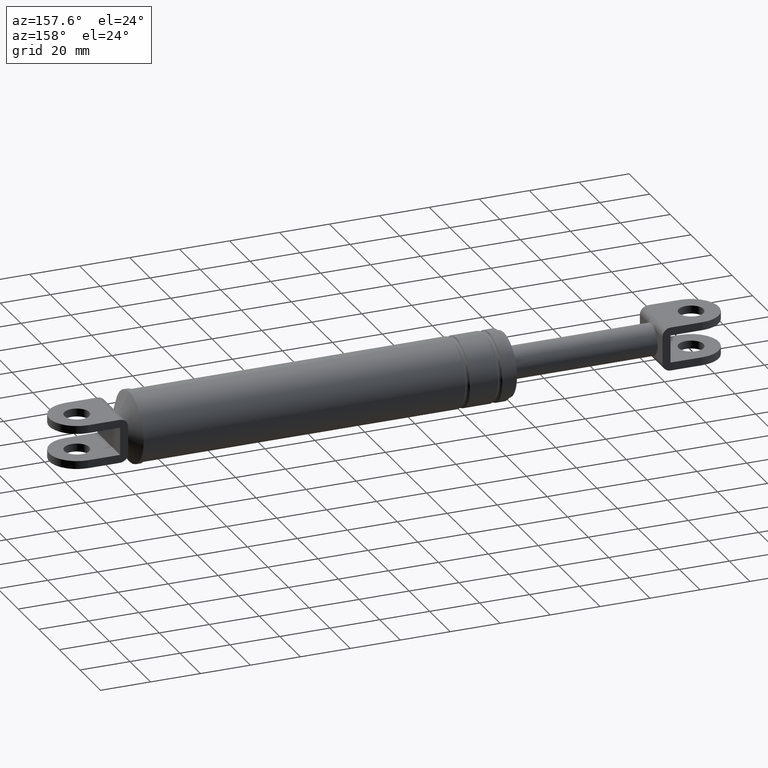
[diagram: clean part render]
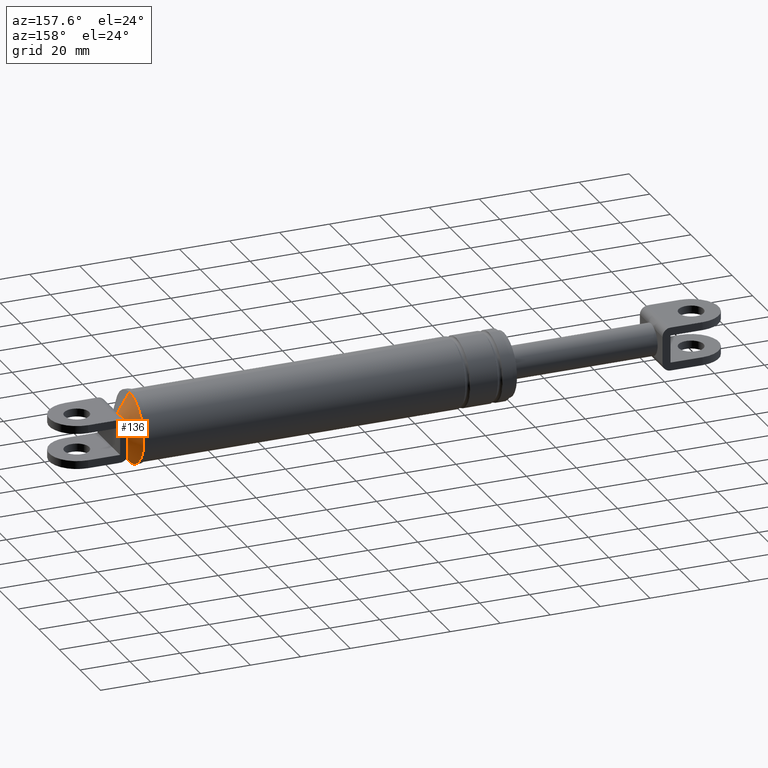
[diagram: same view with one face highlighted and labeled with its STEP entity id]
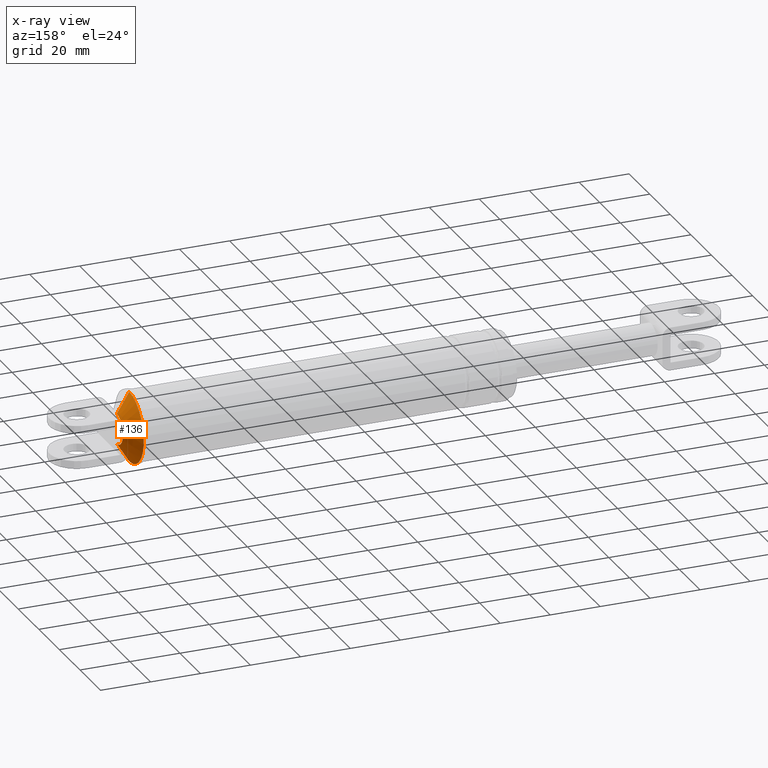
[diagram: x-ray of the same camera — body ghosted, the highlighted face saturated]
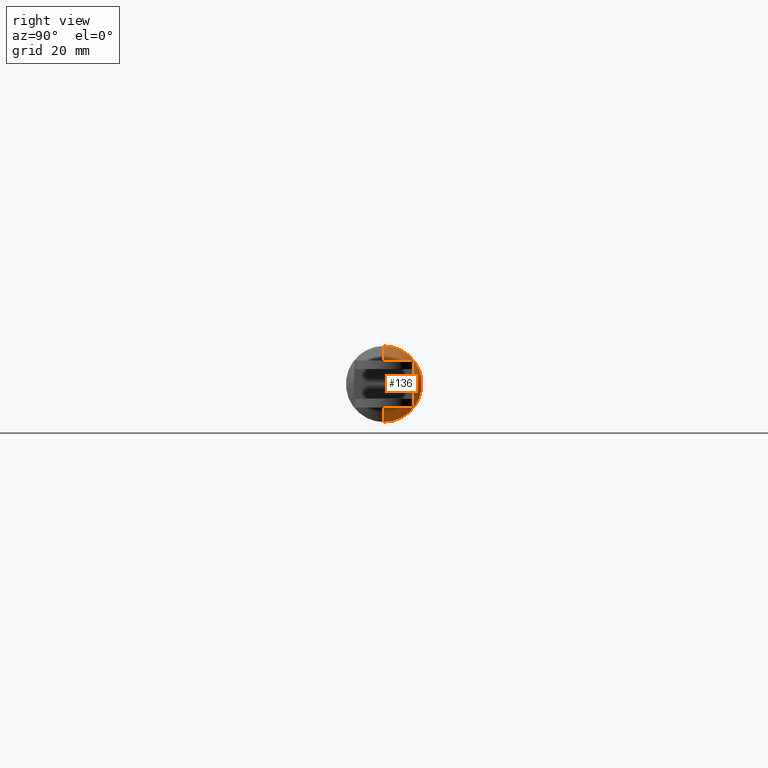
[diagram: same view with one face highlighted and labeled with its STEP entity id]
A machine part, auxiliary view. The second image highlights one B-rep face of the part: STEP entity #136.
The next image is the same camera in x-ray: the body ghosted, the highlighted face saturated — about 0% of this face is hidden behind the body in this view.
A second angle (right view) of the same face is appended — the face is thin or edge-on in the first view.
In plain terms, the highlighted face is a freeform B-spline surface patch.
Its self-contained STEP definition (entity closure, byte-faithful):
#136=ADVANCED_FACE('',(#423),#422,.T.);
#422=( BOUNDED_SURFACE() B_SPLINE_SURFACE( 2,1,((#1360,#1361),(#1362,#1363),(#1364,#1365),(#1366,#1367),(#1368,#1369)), .UNSPECIFIED.,.F.,.F.,.F.) B_SPLINE_SURFACE_WITH_KNOTS((3,2,3),(2,2),(0.00000000000E+000,5.00000000000E-001,1.00000000000E+000),(0.00000000000E+000,1.00000000000E+000), .UNSPECIFIED. ) GEOMETRIC_REPRESENTATION_ITEM() RATIONAL_B_SPLINE_SURFACE(((1.00000000000E+000,1.00000000000E+000),(7.07106781187E-001,7.07106781187E-001),(1.00000000000E+000,1.00000000000E+000),(7.07106781187E-001,7.07106781187E-001),(1.00000000000E+000,1.00000000000E+000))) REPRESENTATION_ITEM('') SURFACE() );
#423=FACE_OUTER_BOUND('',#1370,.T.);
#1360=CARTESIAN_POINT('',(3.23046726228E+002,5.28394570207E-014,1.19820542859E+002));
#1361=CARTESIAN_POINT('',(3.10721955159E+002,1.15446898356E-013,1.39760954089E+002));
#1362=CARTESIAN_POINT('',(3.23046726228E+002,5.28394570207E-014,1.19820542859E+002));
#1363=CARTESIAN_POINT('',(3.10721955159E+002,1.99404112295E+001,1.39760954089E+002));
#1364=CARTESIAN_POINT('',(3.23046726228E+002,5.28394570207E-014,1.19820542859E+002));
#1365=CARTESIAN_POINT('',(3.10721955159E+002,1.99404112295E+001,1.19820542859E+002));
#1366=CARTESIAN_POINT('',(3.23046726228E+002,5.28394570207E-014,1.19820542859E+002));
#1367=CARTESIAN_POINT('',(3.10721955159E+002,1.99404112295E+001,9.98801316299E+001));
#1368=CARTESIAN_POINT('',(3.23046726228E+002,5.28394570207E-014,1.19820542859E+002));
#1369=CARTESIAN_POINT('',(3.10721955159E+002,-7.32598823575E-015,9.98801316299E+001));
#1370=EDGE_LOOP('',(#2089,#2090,#2091,#2092,#2093,#2094));
#2089=ORIENTED_EDGE('',*,*,#2349,.F.);
#2090=ORIENTED_EDGE('',*,*,#2350,.F.);
#2091=ORIENTED_EDGE('',*,*,#2330,.T.);
#2092=ORIENTED_EDGE('',*,*,#2338,.T.);
#2093=ORIENTED_EDGE('',*,*,#2283,.T.);
#2094=ORIENTED_EDGE('',*,*,#2351,.T.);
#2283=EDGE_CURVE('',#2452,#2445,#2453,.T.);
#2330=EDGE_CURVE('',#2772,#2765,#2773,.T.);
#2338=EDGE_CURVE('',#2765,#2452,#2821,.T.);
#2349=EDGE_CURVE('',#2893,#2894,#2895,.T.);
#2350=EDGE_CURVE('',#2772,#2893,#2901,.T.);
#2351=EDGE_CURVE('',#2445,#2894,#2907,.T.);
#2445=VERTEX_POINT('',#3477);
#2452=VERTEX_POINT('',#3482);
#2453=CIRCLE('',#3486,6.01043341957E+000);
#2765=VERTEX_POINT('',#3691);
#2772=VERTEX_POINT('',#3696);
#2773=CIRCLE('',#3700,6.01043341956E+000);
#2821=CIRCLE('',#3730,6.01043341956E+000);
#2893=VERTEX_POINT('',#3769);
#2894=VERTEX_POINT('',#3770);
#2895=CIRCLE('',#3774,1.41000000000E+001);
#2901=(BOUNDED_CURVE() B_SPLINE_CURVE(1,(#3775,#3776),.UNSPECIFIED.,.F.,.F.) B_SPLINE_CURVE_WITH_KNOTS((2,2),(3.01419733466E-001,7.07106780557E-001),.UNSPECIFIED.) CURVE() GEOMETRIC_REPRESENTATION_ITEM() RATIONAL_B_SPLINE_CURVE((1.00000000000E+000,1.00000000000E+000)) REPRESENTATION_ITEM('') );
#2907=(BOUNDED_CURVE() B_SPLINE_CURVE(1,(#3777,#3778),.UNSPECIFIED.,.F.,.F.) B_SPLINE_CURVE_WITH_KNOTS((2,2),(3.01419709613E-001,7.07106774312E-001),.UNSPECIFIED.) CURVE() GEOMETRIC_REPRESENTATION_ITEM() RATIONAL_B_SPLINE_CURVE((7.50000000000E-001,7.50000000000E-001)) REPRESENTATION_ITEM('') );
#3477=CARTESIAN_POINT('',(3.19331797029E+002,-2.78723033769E-008,1.13810109440E+002));
#3482=CARTESIAN_POINT('',(3.19331797029E+002,2.42391066068E+000,1.14320545859E+002));
#3483=CARTESIAN_POINT('',(3.19331797029E+002,1.33670852165E-013,1.19820542859E+002));
#3484=DIRECTION('',(-1.00000000000E+000,-1.37805784948E-014,-6.07325624431E-015));
#3485=DIRECTION('',(-0.00000000000E+000,-4.03283838531E-001,9.15074939871E-001));
#3486=AXIS2_PLACEMENT_3D('',#3483,#3484,#3485);
#3691=CARTESIAN_POINT('',(3.19331797029E+002,2.42391066068E+000,1.25320539859E+002));
#3696=CARTESIAN_POINT('',(3.19331797029E+002,9.77421812874E-014,1.25830976279E+002));
#3697=CARTESIAN_POINT('',(3.19331797029E+002,1.14330767076E-012,1.19820542859E+002));
#3698=DIRECTION('',(-1.00000000000E+000,1.64054505876E-014,7.23006695685E-015));
#3699=DIRECTION('',(-0.00000000000E+000,4.03283838532E-001,-9.15074939870E-001));
#3700=AXIS2_PLACEMENT_3D('',#3697,#3698,#3699);
#3727=CARTESIAN_POINT('',(3.19331797029E+002,3.10862446895E-015,1.19820542859E+002));
#3728=DIRECTION('',(-1.00000000000E+000,3.96097561189E-015,-1.74564659078E-015));
#3729=DIRECTION('',(-0.00000000000E+000,-4.03283838532E-001,-9.15074939870E-001));
#3730=AXIS2_PLACEMENT_3D('',#3727,#3728,#3729);
#3769=CARTESIAN_POINT('',(3.14331797029E+002,1.98359847066E-013,1.33920542859E+002));
#3770=CARTESIAN_POINT('',(3.14331797029E+002,8.18073616148E-015,1.05720542859E+002));
#3771=CARTESIAN_POINT('',(3.14331797029E+002,1.05681027793E-013,1.19820542859E+002));
#3772=DIRECTION('',(-1.00000000000E+000,-1.42533216107E-015,-1.08575660700E-029));
#3773=DIRECTION('',(2.02551882619E-029,-6.59328572567E-015,-1.00000000000E+000));
#3774=AXIS2_PLACEMENT_3D('',#3771,#3772,#3773);
#3775=CARTESIAN_POINT('',(3.19331797017E+002,7.17105266820E-014,1.25830976297E+002));
#3776=CARTESIAN_POINT('',(3.14331797036E+002,9.71094892461E-014,1.33920542847E+002));
#3777=CARTESIAN_POINT('',(3.19331797311E+002,3.33430768114E-014,1.13810109897E+002));
#3778=CARTESIAN_POINT('',(3.14331797113E+002,7.10249264546E-015,1.05720542996E+002));